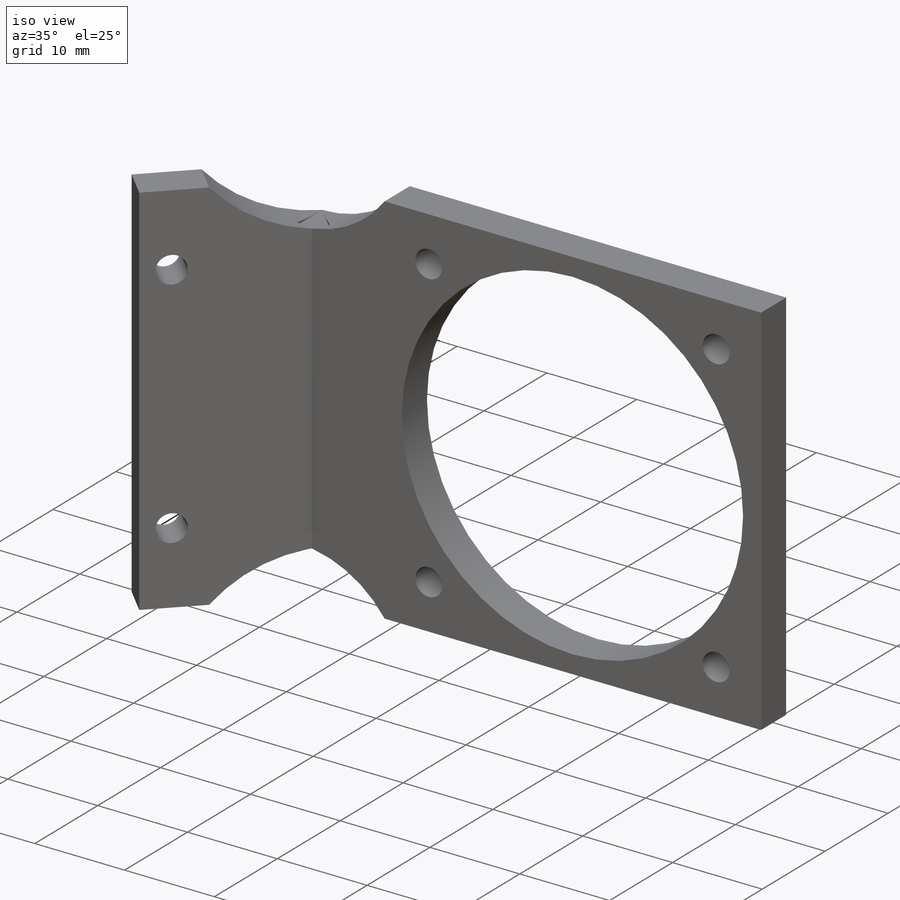
[diagram: iso view]
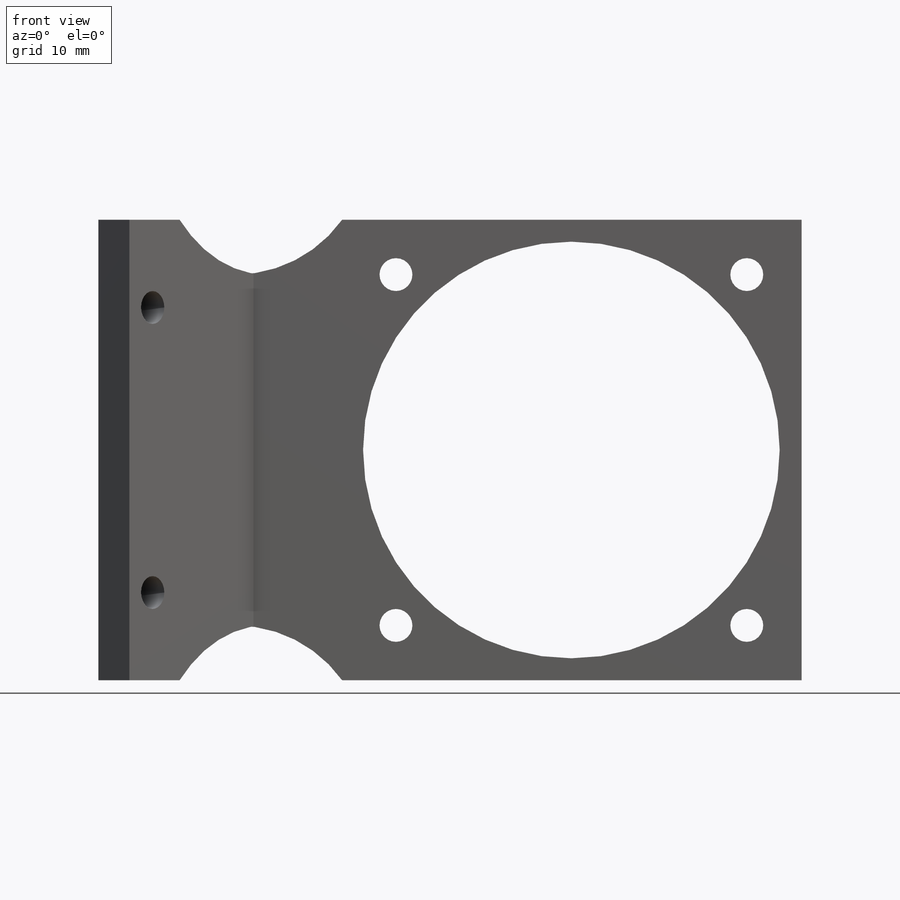
[diagram: front view]
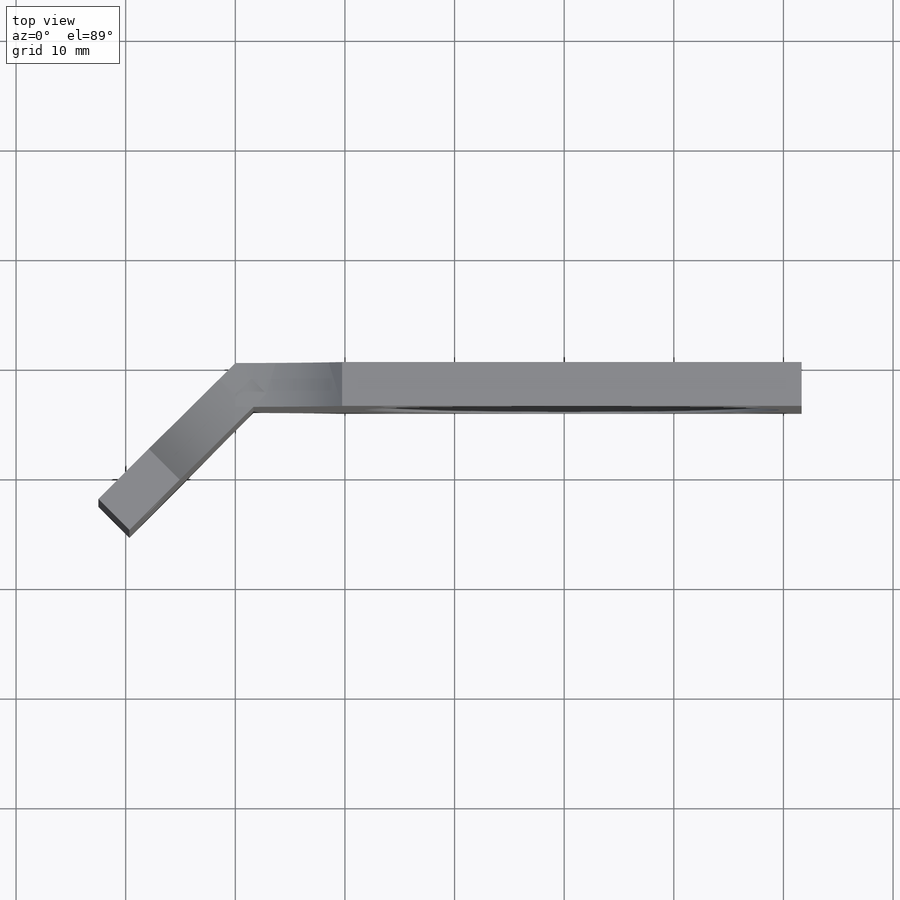
[diagram: top view]
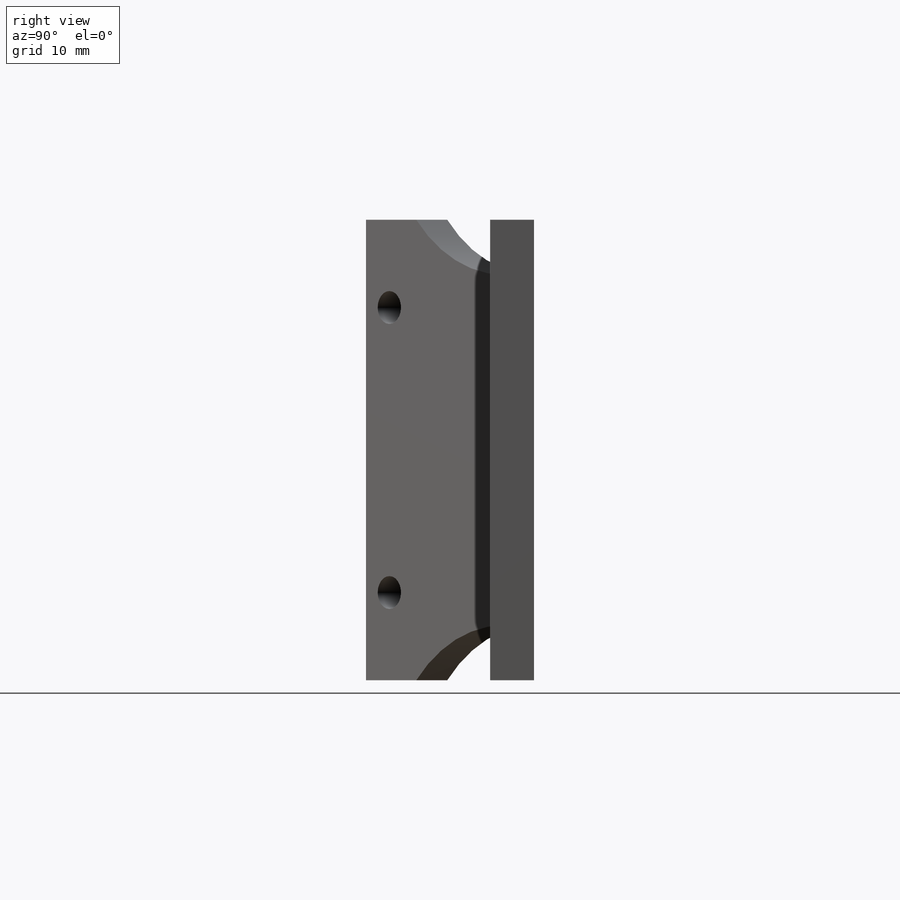
[diagram: right view]
SOLIDWORKS PART (.sldprt)
format: sldprt  version: not decoded by parser v0  size: 245,760 bytes
history: native  units: mm
features: sketch x5, cut_extrude x4, material x1, extrude x1 (+13 scaffold rows collapsed)
feature tree (24):
  scaffold x13  (default folders/planes/origin — collapsed)
  material  "Material <not specified>"
  sketch  "Sketch1"  dims[c1.D1=~20.433474mm c2.D1=225.0deg c2.D2=~56.968973mm c3.D2=67.5deg c3.D1=~56.968973mm c4.D1=135.0deg c4.D3=4.0mm c4.D4=50.0mm c4.D5=16.0mm]
  extrude  "Boss-Extrude1"  Depth=42mm
  sketch  "Sketch2"  dims[c1.D2=3.0mm c1.D3=3.0mm c1.D1=3.0mm c2.D3=26.0mm]
  cut_extrude  "Cut-Extrude1"  [1 undecoded]
  sketch  "Sketch3"  dims[c1.D1=3.0mm c1.D3=38.0mm c1.D2=32.0mm c2.D3=16.0mm]
  cut_extrude  "Cut-Extrude2"  [1 undecoded]
  sketch  "Sketch6"  dims[D1=15.0mm D2=10.0mm D3=10.0mm]
  cut_extrude  "Cut-Extrude3"  [1 undecoded]
  sketch  "Sketch7"  dims[D3=10.0mm D1=7.0mm D2=7.0mm]
  cut_extrude  "Cut-Extrude4"  [1 undecoded]
decode coverage: 6 of 10 modeling features carry decoded parameters
note: ~ marks probable driven/reference dimensions
note: 4 parameter values undecoded
summary: no parameter record found for 4 features
note: suppression state not decoded; provenance and decode notes live in map.json
